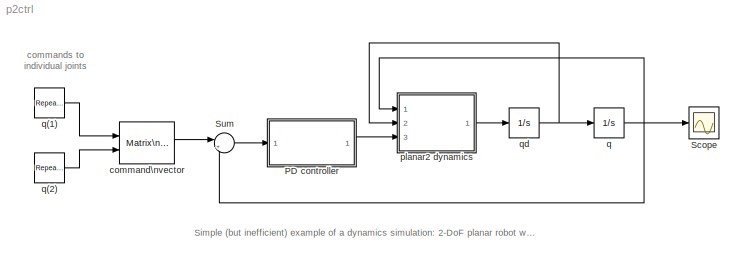
MODEL p2ctrl
KIND model
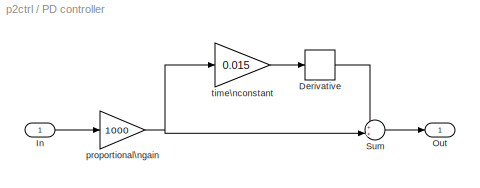
BLOCK [SubSystem] PD controller
  MaskHideContents = off
  MinAlgLoopOccurrences = off
  Ports = [1, 1]
  RTWSystemCode = Auto
  TreatAsAtomicUnit = off
BLOCK [Derivative] PD controller/Derivative
BLOCK [Inport] PD controller/In
  IconDisplay = Port number
BLOCK [Outport] PD controller/Out
  BusOutputAsStruct = off
  IconDisplay = Port number
BLOCK [Sum] PD controller/Sum
  IconShape = round
  InputSameDT = off
  Inputs = ++|
  OutDataTypeMode = Inherit via internal rule
  Ports = [2, 1]
  SaturateOnIntegerOverflow = off
BLOCK [Gain] PD controller/proportional\ngain
  Gain = 1000
  OutDataTypeMode = Inherit via internal rule
  ParameterDataTypeMode = Inherit via internal rule
  SaturateOnIntegerOverflow = off
BLOCK [Gain] PD controller/time\nconstant
  Gain = 0.015
  OutDataTypeMode = Inherit via internal rule
  ParameterDataTypeMode = Inherit via internal rule
  SaturateOnIntegerOverflow = off
BLOCK [Scope] Scope
  DataFormat = StructureWithTime
  Floating = off
  NumInputPorts = 1
  Ports = [1]
  SampleTime = 0
  YMax = 2
  YMin = -0.5
BLOCK [Sum] Sum
  IconShape = round
  InputSameDT = off
  Inputs = |+-
  OutDataTypeMode = Inherit via internal rule
  Ports = [2, 1]
  SaturateOnIntegerOverflow = off
BLOCK [Reference] command\nvector  REF=simulink/Math\nOperations/Matrix\nConcatenation
  Ports = [2, 1]
  SourceBlock = simulink/Math\nOperations/Matrix\nConcatenation
  SourceType = Matrix Concatenation
  catMethod = Vertical
  numInports = 2
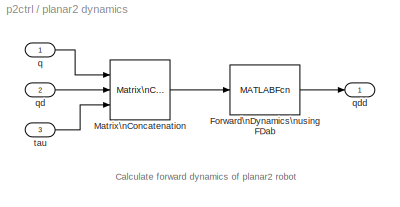
BLOCK [SubSystem] planar2 dynamics
  MaskHideContents = off
  MinAlgLoopOccurrences = off
  Ports = [3, 1]
  RTWSystemCode = Auto
  TreatAsAtomicUnit = off
BLOCK [MATLABFcn] planar2 dynamics/Forward\nDynamics\nusing FDab
  MATLABFcn = FDab( planar2, u(1:2,1), u(3:4,1), u(5:6,1) )
  Output1D = off
  OutputDimensions = [2,1]
  OutputSignalType = real
BLOCK [Reference] planar2 dynamics/Matrix\nConcatenation  REF=simulink/Math\nOperations/Matrix\nConcatenation
  Ports = [3, 1]
  SourceBlock = simulink/Math\nOperations/Matrix\nConcatenation
  SourceType = Matrix Concatenation
  catMethod = Vertical
  numInports = 3
BLOCK [Inport] planar2 dynamics/q
  IconDisplay = Port number
BLOCK [Inport] planar2 dynamics/qd
  IconDisplay = Port number
  Port = 2
BLOCK [Outport] planar2 dynamics/qdd
  BusOutputAsStruct = off
  IconDisplay = Port number
BLOCK [Inport] planar2 dynamics/tau
  IconDisplay = Port number
  Port = 3
BLOCK [Integrator] q
  IgnoreLimit = off
  InitialCondition = [0;0]
  Ports = [1, 1]
BLOCK [Reference] q(1)  REF=simulink/Sources/Repeating\nSequence
  Ports = [0, 1]
  ShowPortLabels = on
  SourceBlock = simulink/Sources/Repeating\nSequence
  SourceType = Repeating table
  rep_seq_t = [0 1 2 3 4]
  rep_seq_y = [0 1 1 0 0]
BLOCK [Reference] q(2)  REF=simulink/Sources/Repeating\nSequence
  Ports = [0, 1]
  ShowPortLabels = on
  SourceBlock = simulink/Sources/Repeating\nSequence
  SourceType = Repeating table
  rep_seq_t = [0 1 2 3 4]
  rep_seq_y = [0 1.5 1.5 0 0]
BLOCK [Integrator] qd
  IgnoreLimit = off
  InitialCondition = [0;0]
  Ports = [1, 1]
ANNOTATION (root): Simple (but inefficient) example of a dynamics simulation: 2-DoF planar robot with PD controller
ANNOTATION (root): commands to\nindividual joints
ANNOTATION planar2 dynamics: Calculate forward dynamics of planar2 robot
LINE PD controller/Derivative:1 -> PD controller/Sum:1
LINE PD controller/In:1 -> PD controller/proportional\ngain:1
LINE PD controller/Sum:1 -> PD controller/Out:1
NET PD controller/proportional\ngain:1 -> PD controller/Sum:2, PD controller/time\nconstant:1
LINE PD controller/time\nconstant:1 -> PD controller/Derivative:1
LINE PD controller:1 -> planar2 dynamics:3
LINE Sum:1 -> PD controller:1
LINE command\nvector:1 -> Sum:1
LINE planar2 dynamics/Forward\nDynamics\nusing FDab:1 -> planar2 dynamics/qdd:1
LINE planar2 dynamics/Matrix\nConcatenation:1 -> planar2 dynamics/Forward\nDynamics\nusing FDab:1
LINE planar2 dynamics/q:1 -> planar2 dynamics/Matrix\nConcatenation:1
LINE planar2 dynamics/qd:1 -> planar2 dynamics/Matrix\nConcatenation:2
LINE planar2 dynamics/tau:1 -> planar2 dynamics/Matrix\nConcatenation:3
LINE planar2 dynamics:1 -> qd:1
LINE q(1):1 -> command\nvector:1
LINE q(2):1 -> command\nvector:2
NET q:1 -> Scope:1, Sum:2, planar2 dynamics:1
NET qd:1 -> planar2 dynamics:2, q:1
note: NET lines group one-source signal fan-out (src -> all destinations, sorted); 1:1 wires keep LINE
